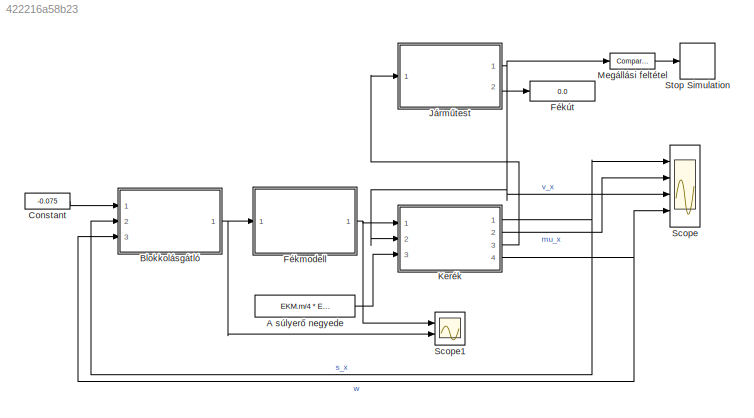
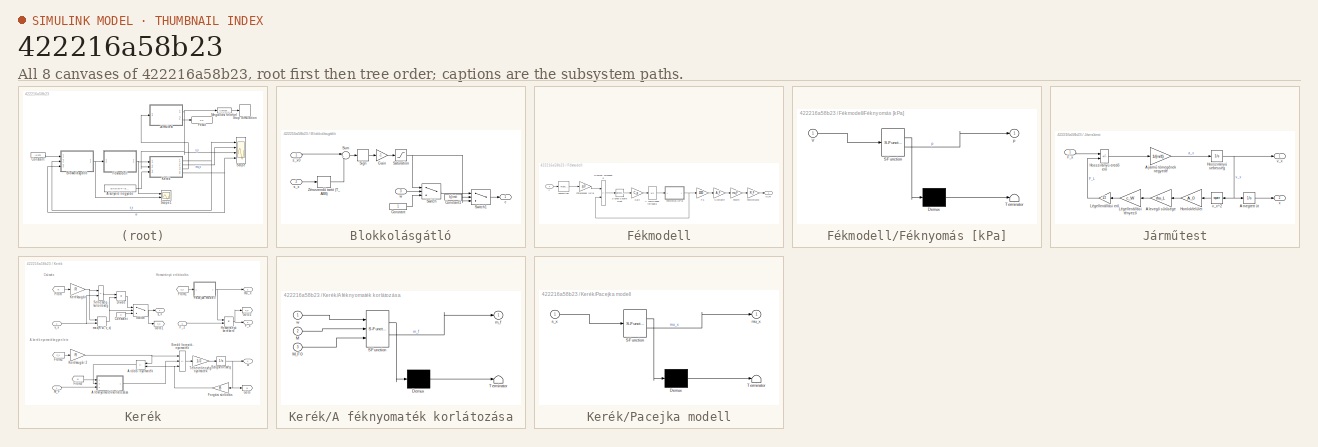
[diagram: thumbnail index - all 8 canvases of the model, root first then tree order]
MODEL slx_422216a58b23
KIND model
CONFIG AbsTol = auto
CONFIG EnableMultiTasking = off
CONFIG FixedStep = auto
CONFIG MaxStep = EKM.T_ABS/25
CONFIG MinStep = auto
CONFIG RelTol = 1e-4
CONFIG SampleTimeConstraint = Unconstrained
CONFIG SolverName = VariableStepAuto
CONFIG StartTime = 0.0
CONFIG StopTime = 10.0
BLOCK [Constant] A súlyerő negyede
  Value = EKM.m/4 * EKM.g
BLOCK [SubSystem] Blokkolásgátló
  Ports = [3, 1]
  RequestExecContextInheritance = off
BLOCK [Constant] Blokkolásgátló/Constant
BLOCK [Constant] Blokkolásgátló/Constant1
  Value = b_limit
BLOCK [Gain] Blokkolásgátló/Gain
  Gain = -1
BLOCK [Saturate] Blokkolásgátló/Saturation
  LowerLimit = 0
  UpperLimit = 1
BLOCK [Signum] Blokkolásgátló/Sign
BLOCK [Sum] Blokkolásgátló/Sum
  Inputs = |+-
  Ports = [2, 1]
BLOCK [Switch] Blokkolásgátló/Switch
  Criteria = u2 > Threshold
  InputSameDT = off
  SaturateOnIntegerOverflow = off
  Threshold = w_limit
BLOCK [Switch] Blokkolásgátló/Switch1
  Criteria = u2 ~= 0
  InputSameDT = off
  SaturateOnIntegerOverflow = off
  Threshold = w_limit
BLOCK [ZeroOrderHold] Blokkolásgátló/Zérusrendű tartó (T_ABS)
  SampleTime = EKM.T_ABS
BLOCK [Outport] Blokkolásgátló/c
BLOCK [Inport] Blokkolásgátló/s_x
  Port = 2
BLOCK [Inport] Blokkolásgátló/s_x0
BLOCK [Inport] Blokkolásgátló/w
  Port = 3
BLOCK [Constant] Constant
  Value = -0.075
BLOCK [SubSystem] Fékmodell
  Ports = [1, 1]
  RequestExecContextInheritance = off
BLOCK [Integrator] Fékmodell/A fékfolyadék térfogata
  LimitOutput = on
  LowerSaturationLimit = 0
  Ports = [1, 1]
BLOCK [Gain] Fékmodell/Fékerő
  Gain = mu_F
BLOCK [TransportDelay] Fékmodell/Fékholtidő
  DelayTime = T_D
  Ports = [1, 1]
BLOCK [Gain] Fékmodell/Féknyomaték
  Gain = R_F
BLOCK [SubSystem] Fékmodell/Féknyomás [kPa]
  ErrorFcn = Stateflow.Translate.translate
  PermitHierarchicalResolution = ExplicitOnly
  Ports = [1, 1]
  RequestExecContextInheritance = off
  SFBlockType = MATLAB Function
  TreatAsAtomicUnit = on
BLOCK [Demux] Fékmodell/Féknyomás [kPa]/ Demux 
  Outputs = 1
  Ports = [1, 1]
BLOCK [S-Function] Fékmodell/Féknyomás [kPa]/ SFunction 
  EnableBusSupport = on
  FunctionName = sf_sfun
  PortCounts = [1 2]
  Ports = [1, 2]
  SFcnIsStateOwnerBlock = off
  SFunctionDeploymentMode = off
  Tag = Stateflow S-Function 3
BLOCK [Terminator] Fékmodell/Féknyomás [kPa]/ Terminator 
BLOCK [Inport] Fékmodell/Féknyomás [kPa]/V
BLOCK [Outport] Fékmodell/Féknyomás [kPa]/p
BLOCK [Gain] Fékmodell/Főfékhenger [kPa]
  Gain = p_0
BLOCK [Gain] Fékmodell/Gain
  Gain = C_q
BLOCK [Outport] Fékmodell/M_F0
BLOCK [Sum] Fékmodell/Nyomás- különbség
  IconShape = rectangular
  Inputs = +-
  Ports = [2, 1]
BLOCK [Gain] Fékmodell/Nyomóerő
  Gain = A_F
BLOCK [Gain] Fékmodell/Pa
  Gain = 1000
BLOCK [Sqrt] Fékmodell/Signed Square Root
  Operator = signedSqrt
BLOCK [Inport] Fékmodell/c
BLOCK [Display] Fékút
  Decimation = 1
  Ports = [1]
BLOCK [SubSystem] Járműtest
  Ports = [1, 2]
  RequestExecContextInheritance = off
BLOCK [Gain] Járműtest/A jármű tömegének negyede
  Gain = 1/(m/4)
BLOCK [Gain] Járműtest/A levegő sűrűsége
  Gain = rho_L
BLOCK [Integrator] Járműtest/A megtett út
  InitialCondition = x_0
  Ports = [1, 1]
BLOCK [Inport] Járműtest/F_x
BLOCK [Gain] Járműtest/Homlokfelület
  Gain = A_0
BLOCK [Sum] Járműtest/Hosszirányú eredő erő
  IconShape = rectangular
  Inputs = +-
  Ports = [2, 1]
BLOCK [Integrator] Járműtest/Hosszirányú sebesség
  InitialCondition = v_0
  Ports = [1, 1]
BLOCK [Gain] Járműtest/Légellenállási erő
  Gain = 1/2
BLOCK [Gain] Járműtest/Légellenállási tényező
  Gain = c_W
BLOCK [Outport] Járműtest/v_x
BLOCK [Math] Járműtest/v_x^2
  Operator = square
  Ports = [1, 1]
BLOCK [Outport] Járműtest/x
  Port = 2
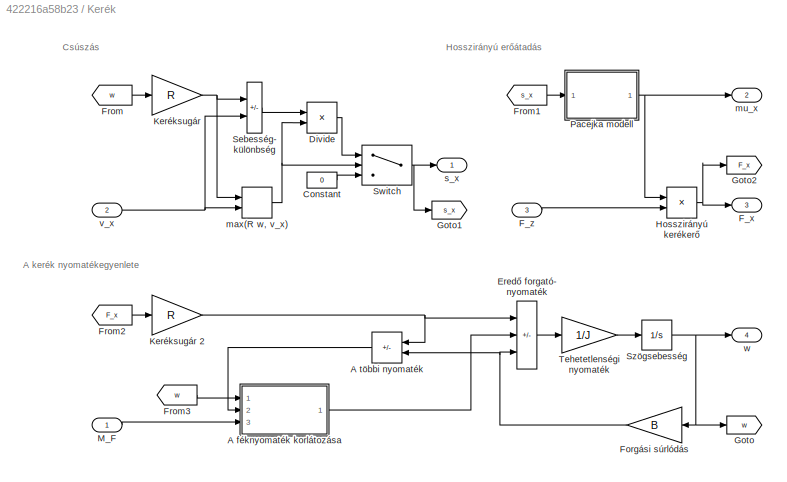
BLOCK [SubSystem] Kerék
  Ports = [3, 4]
  RequestExecContextInheritance = off
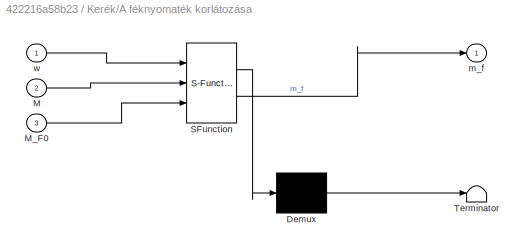
BLOCK [SubSystem] Kerék/A féknyomaték korlátozása
  ErrorFcn = Stateflow.Translate.translate
  PermitHierarchicalResolution = ExplicitOnly
  Ports = [3, 1]
  RequestExecContextInheritance = off
  SFBlockType = MATLAB Function
  TreatAsAtomicUnit = on
BLOCK [Demux] Kerék/A féknyomaték korlátozása/ Demux 
  Outputs = 1
  Ports = [1, 1]
BLOCK [S-Function] Kerék/A féknyomaték korlátozása/ SFunction 
  EnableBusSupport = on
  FunctionName = sf_sfun
  PortCounts = [3 2]
  Ports = [3, 2]
  SFcnIsStateOwnerBlock = off
  SFunctionDeploymentMode = off
  Tag = Stateflow S-Function 1
BLOCK [Terminator] Kerék/A féknyomaték korlátozása/ Terminator 
BLOCK [Inport] Kerék/A féknyomaték korlátozása/M
  Port = 2
BLOCK [Inport] Kerék/A féknyomaték korlátozása/M_F0
  Port = 3
BLOCK [Outport] Kerék/A féknyomaték korlátozása/m_f
BLOCK [Inport] Kerék/A féknyomaték korlátozása/w
BLOCK [Sum] Kerék/A többi nyomaték
  IconShape = rectangular
  Inputs = --
  Ports = [2, 1]
BLOCK [Constant] Kerék/Constant
  Value = 0
BLOCK [Product] Kerék/Divide
  Inputs = */
  Ports = [2, 1]
BLOCK [Sum] Kerék/Eredő forgató- nyomaték
  IconShape = rectangular
  Inputs = -+-
  Ports = [3, 1]
BLOCK [Outport] Kerék/F_x
  Port = 3
BLOCK [Inport] Kerék/F_z
  Port = 3
BLOCK [Gain] Kerék/Forgási súrlódás
  Gain = B
BLOCK [From] Kerék/From
  GotoTag = w
BLOCK [From] Kerék/From1
  GotoTag = s_x
BLOCK [From] Kerék/From2
  GotoTag = F_x
BLOCK [From] Kerék/From3
  GotoTag = w
BLOCK [Goto] Kerék/Goto
  GotoTag = w
BLOCK [Goto] Kerék/Goto1
  GotoTag = s_x
BLOCK [Goto] Kerék/Goto2
  GotoTag = F_x
BLOCK [Product] Kerék/Hosszirányú kerékerő
  Ports = [2, 1]
BLOCK [Gain] Kerék/Keréksugár
  Gain = R
BLOCK [Gain] Kerék/Keréksugár 2
  Gain = R
BLOCK [Inport] Kerék/M_F
BLOCK [SubSystem] Kerék/Pacejka modell
  ErrorFcn = Stateflow.Translate.translate
  PermitHierarchicalResolution = ExplicitOnly
  Ports = [1, 1]
  RequestExecContextInheritance = off
  SFBlockType = MATLAB Function
  TreatAsAtomicUnit = on
BLOCK [Demux] Kerék/Pacejka modell/ Demux 
  Outputs = 1
  Ports = [1, 1]
BLOCK [S-Function] Kerék/Pacejka modell/ SFunction 
  EnableBusSupport = on
  FunctionName = sf_sfun
  PortCounts = [1 2]
  Ports = [1, 2]
  SFcnIsStateOwnerBlock = off
  SFunctionDeploymentMode = off
  Tag = Stateflow S-Function 2
BLOCK [Terminator] Kerék/Pacejka modell/ Terminator 
BLOCK [Outport] Kerék/Pacejka modell/mu_x
BLOCK [Inport] Kerék/Pacejka modell/s_x
BLOCK [Sum] Kerék/Sebesség- különbség
  IconShape = rectangular
  Inputs = +-
  Ports = [2, 1]
BLOCK [Switch] Kerék/Switch
  Criteria = u2 ~= 0
  InputSameDT = off
  SaturateOnIntegerOverflow = off
BLOCK [Integrator] Kerék/Szögsebesség
  InitialCondition = w_0
  LimitOutput = on
  LowerSaturationLimit = 0
  Ports = [1, 1]
BLOCK [Gain] Kerék/Tehetetlenségi nyomaték
  Gain = 1/J
BLOCK [MinMax] Kerék/max(R w, v_x)
  Function = max
  Inputs = 2
  Ports = [2, 1]
BLOCK [Outport] Kerék/mu_x
  Port = 2
BLOCK [Outport] Kerék/s_x
BLOCK [Inport] Kerék/v_x
  Port = 2
BLOCK [Outport] Kerék/w
  Port = 4
BLOCK [Reference] Megállási feltétel  REF=simulink/Logic and Bit
Operations/Compare
To Constant
  Ports = [1, 1]
  SourceBlock = simulink/Logic and Bit\nOperations/Compare\nTo Constant
  SourceProductBaseCode = SL
  SourceType = Compare To Constant
BLOCK [Scope] Scope
  Floating = off
  NumInputPorts = 4
  Ports = [4]
  ScopeSpecificationString = Simulink.scopes.TimeScopeBlockCfg('CurrentConfiguration', extmgr.ConfigurationSet(extmgr.Configuration('Core','General UI',true),extmgr.Configuration('Core','Source UI',true),extmgr.Configuration('Sources','WiredSimulink',true),extmgr.Configuration('Visuals','Time Domain',true,'SerializedDisplays',{struct('MinYLimReal','-1.125','MaxYLimReal','0.125','YLabelReal','','MinYLimMag','0.00000','MaxYLimM...<+3818ch>
BLOCK [Scope] Scope1
  Floating = off
  NumInputPorts = 2
  Ports = [2]
  ScopeSpecificationString = Simulink.scopes.TimeScopeBlockCfg('CurrentConfiguration', extmgr.ConfigurationSet(extmgr.Configuration('Core','General UI',true),extmgr.Configuration('Core','Source UI',true),extmgr.Configuration('Sources','WiredSimulink',true,'DataLoggingVariableName','ScopeData1'),extmgr.Configuration('Visuals','Time Domain',true,'SerializedDisplays',{struct('MinYLimReal','-158.61664','MaxYLimReal','1427.54976',...<+2331ch>
BLOCK [Stop] Stop Simulation
ANNOTATION Kerék: A kerék nyomatékegyenlete
ANNOTATION Kerék: Csúszás
ANNOTATION Kerék: Hosszirányú erőátadás
LINE A súlyerő negyede:1 -> Kerék:3
LINE Blokkolásgátló/Constant1:1 -> Blokkolásgátló/Switch1:2
LINE Blokkolásgátló/Constant:1 -> Blokkolásgátló/Switch:3
LINE Blokkolásgátló/Gain:1 -> Blokkolásgátló/Saturation:1
NET Blokkolásgátló/Saturation:1 -> Blokkolásgátló/Switch1:3, Blokkolásgátló/Switch:1
LINE Blokkolásgátló/Sign:1 -> Blokkolásgátló/Gain:1
LINE Blokkolásgátló/Sum:1 -> Blokkolásgátló/Sign:1
LINE Blokkolásgátló/Switch1:1 -> Blokkolásgátló/c:1
LINE Blokkolásgátló/Switch:1 -> Blokkolásgátló/Switch1:1
LINE Blokkolásgátló/Zérusrendű tartó (T_ABS):1 -> Blokkolásgátló/Sum:2
LINE Blokkolásgátló/s_x0:1 -> Blokkolásgátló/Sum:1
LINE Blokkolásgátló/s_x:1 -> Blokkolásgátló/Zérusrendű tartó (T_ABS):1
LINE Blokkolásgátló/w:1 -> Blokkolásgátló/Switch:2
NET Blokkolásgátló:1 -> Fékmodell:1, Scope1:2
LINE Constant:1 -> Blokkolásgátló:1
LINE Fékmodell/A fékfolyadék térfogata:1 -> Fékmodell/Féknyomás [kPa]:1
LINE Fékmodell/Fékerő:1 -> Fékmodell/Féknyomaték:1
LINE Fékmodell/Fékholtidő:1 -> Fékmodell/Főfékhenger [kPa]:1
LINE Fékmodell/Féknyomaték:1 -> Fékmodell/M_F0:1
NET Fékmodell/Féknyomás [kPa]:1 -> Fékmodell/Nyomás- különbség:2, Fékmodell/Pa:1
LINE Fékmodell/Főfékhenger [kPa]:1 -> Fékmodell/Nyomás- különbség:1
LINE Fékmodell/Gain:1 -> Fékmodell/A fékfolyadék térfogata:1
LINE Fékmodell/Nyomás- különbség:1 -> Fékmodell/Signed Square Root:1
LINE Fékmodell/Nyomóerő:1 -> Fékmodell/Fékerő:1
LINE Fékmodell/Pa:1 -> Fékmodell/Nyomóerő:1
LINE Fékmodell/Signed Square Root:1 -> Fékmodell/Gain:1
LINE Fékmodell/c:1 -> Fékmodell/Fékholtidő:1
NET Fékmodell:1 -> Kerék:1, Scope1:1
LINE Járműtest/A jármű tömegének negyede:1 -> Járműtest/Hosszirányú sebesség:1
LINE Járműtest/A levegő sűrűsége:1 -> Járműtest/Légellenállási tényező:1
LINE Járműtest/A megtett út:1 -> Járműtest/x:1
LINE Járműtest/F_x:1 -> Járműtest/Hosszirányú eredő erő:1
LINE Járműtest/Homlokfelület:1 -> Járműtest/A levegő sűrűsége:1
LINE Járműtest/Hosszirányú eredő erő:1 -> Járműtest/A jármű tömegének negyede:1
NET Járműtest/Hosszirányú sebesség:1 -> Járműtest/A megtett út:1, Járműtest/v_x:1, Járműtest/v_x^2:1
LINE Járműtest/Légellenállási erő:1 -> Járműtest/Hosszirányú eredő erő:2
LINE Járműtest/Légellenállási tényező:1 -> Járműtest/Légellenállási erő:1
LINE Járműtest/v_x^2:1 -> Járműtest/Homlokfelület:1
NET Járműtest:1 -> Kerék:2, Megállási feltétel:1, Scope:3
LINE Járműtest:2 -> Fékút:1
LINE Kerék/A féknyomaték korlátozása:1 -> Kerék/Eredő forgató- nyomaték:2
LINE Kerék/A többi nyomaték:1 -> Kerék/A féknyomaték korlátozása:2
LINE Kerék/Constant:1 -> Kerék/Switch:3
LINE Kerék/Divide:1 -> Kerék/Switch:1
LINE Kerék/Eredő forgató- nyomaték:1 -> Kerék/Tehetetlenségi nyomaték:1
LINE Kerék/F_z:1 -> Kerék/Hosszirányú kerékerő:2
NET Kerék/Forgási súrlódás:1 -> Kerék/A többi nyomaték:2, Kerék/Eredő forgató- nyomaték:3
LINE Kerék/From1:1 -> Kerék/Pacejka modell:1
LINE Kerék/From2:1 -> Kerék/Keréksugár 2:1
LINE Kerék/From3:1 -> Kerék/A féknyomaték korlátozása:1
LINE Kerék/From:1 -> Kerék/Keréksugár:1
NET Kerék/Hosszirányú kerékerő:1 -> Kerék/F_x:1, Kerék/Goto2:1
NET Kerék/Keréksugár 2:1 -> Kerék/A többi nyomaték:1, Kerék/Eredő forgató- nyomaték:1
NET Kerék/Keréksugár:1 -> Kerék/Sebesség- különbség:1, Kerék/max(R w, v_x):1
LINE Kerék/M_F:1 -> Kerék/A féknyomaték korlátozása:3
NET Kerék/Pacejka modell:1 -> Kerék/Hosszirányú kerékerő:1, Kerék/mu_x:1
LINE Kerék/Sebesség- különbség:1 -> Kerék/Divide:1
NET Kerék/Switch:1 -> Kerék/Goto1:1, Kerék/s_x:1
NET Kerék/Szögsebesség:1 -> Kerék/Forgási súrlódás:1, Kerék/Goto:1, Kerék/w:1
LINE Kerék/Tehetetlenségi nyomaték:1 -> Kerék/Szögsebesség:1
NET Kerék/max(R w, v_x):1 -> Kerék/Divide:2, Kerék/Switch:2
NET Kerék/v_x:1 -> Kerék/Sebesség- különbség:2, Kerék/max(R w, v_x):2
NET Kerék:1 -> Blokkolásgátló:2, Scope:1
LINE Kerék:2 -> Scope:2
LINE Kerék:3 -> Járműtest:1
NET Kerék:4 -> Blokkolásgátló:3, Scope:4
LINE Megállási feltétel:1 -> Stop Simulation:1
note: NET lines group one-source signal fan-out (src -> all destinations, sorted); 1:1 wires keep LINE
CHART Kerék/Pacejka modell states=1 transitions=1
  STATE_LABEL 'eML_blk_kernel()'
  STATE_LABEL 'SCRIPT:\nfunction mu_x = Pacejka(s_x)\n\nmu_x = EKM.PacejkaLongitudinalForceCoefficient(s_x);\n'
CHART Fékmodell/Féknyomás [kPa] states=1 transitions=1
  STATE_LABEL 'eML_blk_kernel()'
  STATE_LABEL 'SCRIPT:\nfunction p = F(V)\n\np = EKM.BrakePressure(V);\n'
CHART Kerék/A féknyomaték 
korlátozása states=1 transitions=1
  STATE_LABEL 'eML_blk_kernel()'
  STATE_LABEL 'SCRIPT:\nfunction m_f = M_F(w, M, M_F0)\n\nm_f = EKM.M_F(w, M, M_F0);\n'
CHART  states=0 transitions=0
CHART  states=0 transitions=0
CHART  states=0 transitions=0
